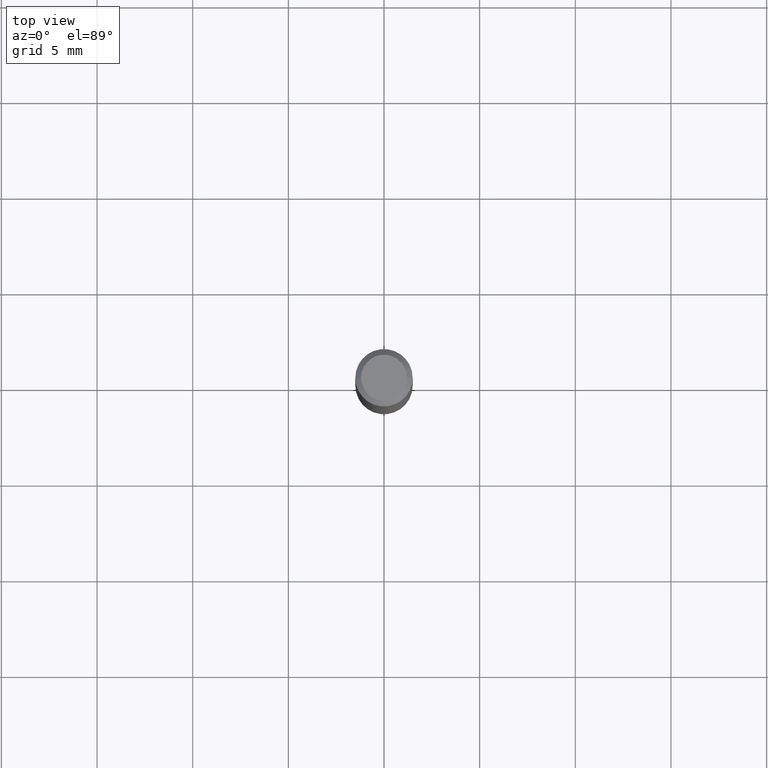
[diagram: clean part render]
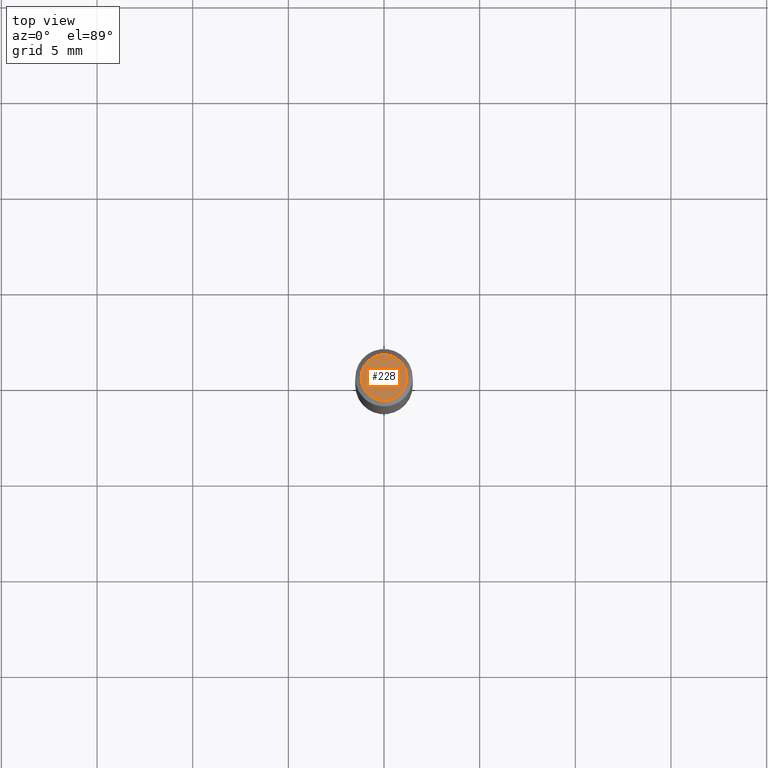
[diagram: same view with one face highlighted and labeled with its STEP entity id]
A machine part, top view. The second image highlights one B-rep face of the part: STEP entity #228.
In plain terms, the highlighted planar face has unit normal (0, -0, -1).
Its self-contained STEP definition (entity closure, byte-faithful):
#10 = ORIENTED_EDGE ( 'NONE', *, *, #30, .T. ) ;
#29 = ORIENTED_EDGE ( 'NONE', *, *, #231, .T. ) ;
#30 = EDGE_CURVE ( 'NONE', #378, #148, #229, .T. ) ;
#32 = AXIS2_PLACEMENT_3D ( 'NONE', #224, #82, #227 ) ;
#53 = DIRECTION ( 'NONE',  ( -2.445468806185136597E-29, 3.491481338843145583E-15, 1.000000000000000000 ) ) ;
#82 = DIRECTION ( 'NONE',  ( -2.445468806185136597E-29, 3.491481338843145583E-15, 1.000000000000000000 ) ) ;
#93 = CARTESIAN_POINT ( 'NONE',  ( 0.04724000000000000421, -3.852183633974369345E-16, -3.380025165621689721E-19 ) ) ;
#100 = DIRECTION ( 'NONE',  ( 2.438088387897960049E-29, -3.491481338843145188E-15, -1.000000000000000000 ) ) ;
#140 = PLANE ( 'NONE',  #355 ) ;
#148 = VERTEX_POINT ( 'NONE', #243 ) ;
#202 = DIRECTION ( 'NONE',  ( 1.000000000000000000, -6.982962677686266711E-15, 4.876185090822587894E-29 ) ) ;
#224 = CARTESIAN_POINT ( 'NONE',  ( 8.265746106709734507E-48, -1.180129479067563789E-33, -3.380025165646692144E-19 ) ) ;
#227 = DIRECTION ( 'NONE',  ( 1.000000000000000000, -6.982962677686266711E-15, 4.876185090822587894E-29 ) ) ;
#228 = ADVANCED_FACE ( 'NONE', ( #305 ), #140, .F. ) ;
#229 = CIRCLE ( 'NONE', #32, 0.04724000000000000421 ) ;
#231 = EDGE_CURVE ( 'NONE', #148, #378, #335, .T. ) ;
#243 = CARTESIAN_POINT ( 'NONE',  ( -0.04724000000000000421, 3.504923541997677355E-16, -3.380025165670481712E-19 ) ) ;
#277 = CARTESIAN_POINT ( 'NONE',  ( 4.132873053354867254E-48, -5.900647395337818946E-34, -1.690012582823346072E-19 ) ) ;
#305 = FACE_OUTER_BOUND ( 'NONE', #483, .T. ) ;
#335 = CIRCLE ( 'NONE', #403, 0.04724000000000000421 ) ;
#355 = AXIS2_PLACEMENT_3D ( 'NONE', #277, #100, #426 ) ;
#378 = VERTEX_POINT ( 'NONE', #93 ) ;
#386 = CARTESIAN_POINT ( 'NONE',  ( 8.265746106709734507E-48, -1.180129479067563789E-33, -3.380025165646692144E-19 ) ) ;
#403 = AXIS2_PLACEMENT_3D ( 'NONE', #386, #53, #202 ) ;
#426 = DIRECTION ( 'NONE',  ( -1.000000000000000000, 6.982962677686265922E-15, -4.876176775795935793E-29 ) ) ;
#483 = EDGE_LOOP ( 'NONE', ( #29, #10 ) ) ;